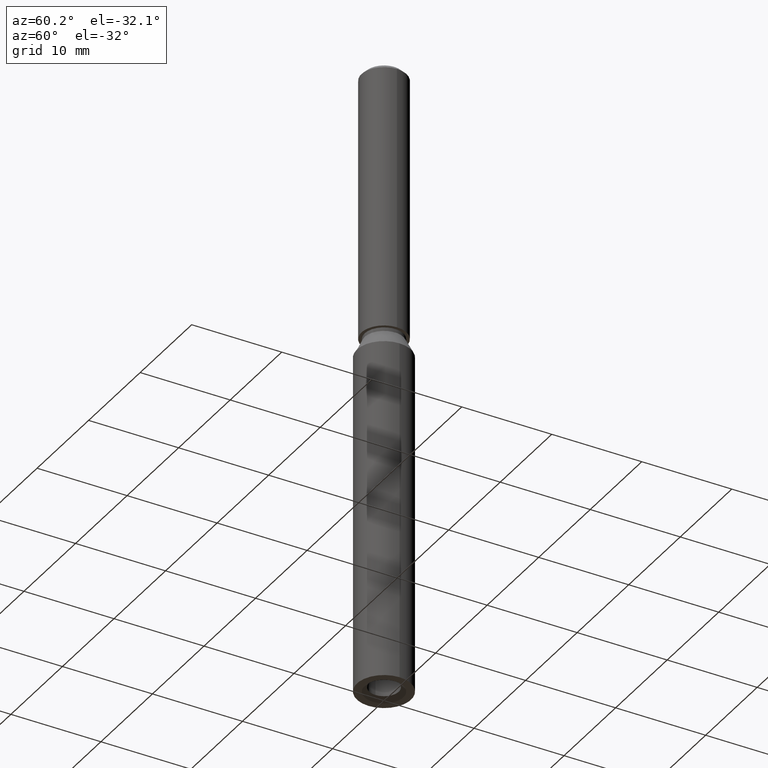
[diagram: clean part render]
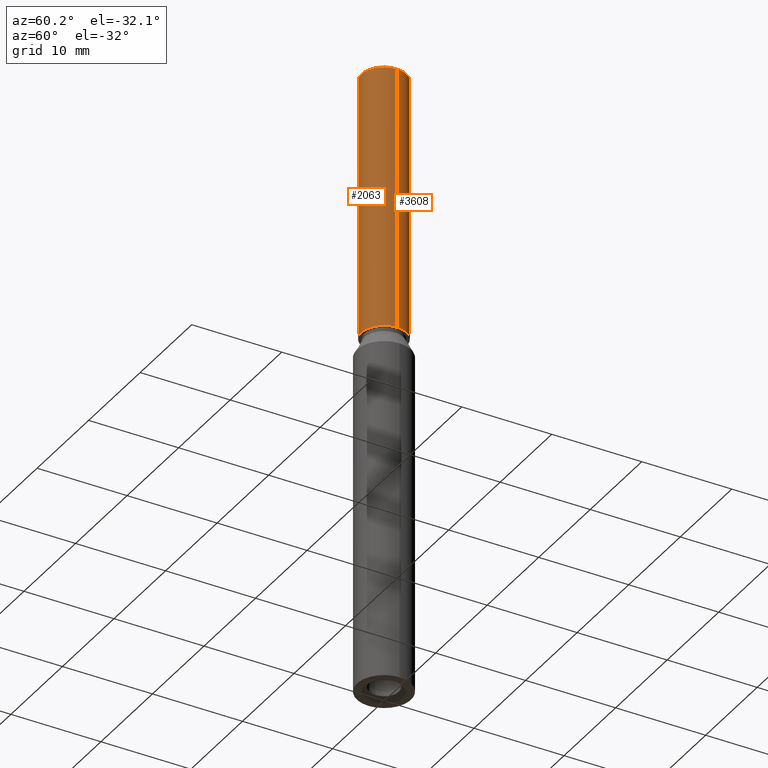
[diagram: same view with one multi-face feature highlighted, each face labeled with its STEP entity id]
A machine part, auxiliary view. The highlighted faces form ONE feature: a constant-radius fillet chain: 2 tangent blend faces with common blend radius 2.5 mm. The faces share edges in the B-rep.
Their STEP definitions:
[1] entity #3608 (Cylinder):
#199 = EDGE_LOOP ( 'NONE', ( #12756, #2316, #2643, #9318 ) ) ;
#763 = DIRECTION ( 'NONE',  ( 0.0000000000000000000, 1.000000000000000000, 0.0000000000000000000 ) ) ;
#1044 = VERTEX_POINT ( 'NONE', #2438 ) ;
#1679 = CIRCLE ( 'NONE', #2506, 2.500000000000000000 ) ;
#1763 = DIRECTION ( 'NONE',  ( -0.0000000000000000000, 1.967742040464204400E-018, -1.000000000000000000 ) ) ;
#2316 = ORIENTED_EDGE ( 'NONE', *, *, #4441, .T. ) ;
#2438 = CARTESIAN_POINT ( 'NONE',  ( -2.500000000000000000, 0.0000000000000000000, 40.10000000000000100 ) ) ;
#2506 = AXIS2_PLACEMENT_3D ( 'NONE', #13674, #1763, #763 ) ;
#2643 = ORIENTED_EDGE ( 'NONE', *, *, #3702, .F. ) ;
#2774 = AXIS2_PLACEMENT_3D ( 'NONE', #9243, #7018, #8112 ) ;
#2819 = AXIS2_PLACEMENT_3D ( 'NONE', #4893, #5967, #13592 ) ;
#3608 = ADVANCED_FACE ( 'NONE', ( #5890 ), #5059, .T. ) ;
#3654 = CARTESIAN_POINT ( 'NONE',  ( -2.500000000000000000, 0.0000000000000000000, 70.00000000000000000 ) ) ;
#3697 = DIRECTION ( 'NONE',  ( -0.0000000000000000000, -0.0000000000000000000, -1.000000000000000000 ) ) ;
#3702 = EDGE_CURVE ( 'NONE', #1044, #6711, #1679, .T. ) ;
#3825 = CARTESIAN_POINT ( 'NONE',  ( 2.500000000000000000, 3.061616997868383100E-016, 40.10000000000000100 ) ) ;
#4218 = LINE ( 'NONE', #3654, #5374 ) ;
#4441 = EDGE_CURVE ( 'NONE', #10838, #6711, #9627, .T. ) ;
#4893 = CARTESIAN_POINT ( 'NONE',  ( 0.0000000000000000000, 0.0000000000000000000, 69.50000000000001400 ) ) ;
#4940 = VERTEX_POINT ( 'NONE', #12762 ) ;
#5059 = CYLINDRICAL_SURFACE ( 'NONE', #2774, 2.500000000000000000 ) ;
#5374 = VECTOR ( 'NONE', #3697, 1000.000000000000000 ) ;
#5890 = FACE_OUTER_BOUND ( 'NONE', #199, .T. ) ;
#5967 = DIRECTION ( 'NONE',  ( 0.0000000000000000000, 0.0000000000000000000, -1.000000000000000000 ) ) ;
#6398 = VECTOR ( 'NONE', #8318, 1000.000000000000000 ) ;
#6711 = VERTEX_POINT ( 'NONE', #3825 ) ;
#7002 = CIRCLE ( 'NONE', #2819, 2.500000000000000000 ) ;
#7018 = DIRECTION ( 'NONE',  ( -0.0000000000000000000, -0.0000000000000000000, -1.000000000000000000 ) ) ;
#7600 = EDGE_CURVE ( 'NONE', #4940, #1044, #4218, .T. ) ;
#7754 = CARTESIAN_POINT ( 'NONE',  ( 2.500000000000000000, 3.061616997868383100E-016, 69.50000000000001400 ) ) ;
#8112 = DIRECTION ( 'NONE',  ( -1.000000000000000000, 0.0000000000000000000, 0.0000000000000000000 ) ) ;
#8318 = DIRECTION ( 'NONE',  ( -0.0000000000000000000, -0.0000000000000000000, -1.000000000000000000 ) ) ;
#9243 = CARTESIAN_POINT ( 'NONE',  ( 0.0000000000000000000, 0.0000000000000000000, 70.00000000000000000 ) ) ;
#9318 = ORIENTED_EDGE ( 'NONE', *, *, #7600, .F. ) ;
#9627 = LINE ( 'NONE', #12794, #6398 ) ;
#10838 = VERTEX_POINT ( 'NONE', #7754 ) ;
#12756 = ORIENTED_EDGE ( 'NONE', *, *, #12760, .T. ) ;
#12760 = EDGE_CURVE ( 'NONE', #4940, #10838, #7002, .T. ) ;
#12762 = CARTESIAN_POINT ( 'NONE',  ( -2.500000000000000000, 0.0000000000000000000, 69.50000000000001400 ) ) ;
#12794 = CARTESIAN_POINT ( 'NONE',  ( 2.500000000000000000, 3.061616997868383100E-016, 70.00000000000000000 ) ) ;
#13592 = DIRECTION ( 'NONE',  ( 1.000000000000000000, 0.0000000000000000000, 0.0000000000000000000 ) ) ;
#13674 = CARTESIAN_POINT ( 'NONE',  ( 0.0000000000000000000, 0.0000000000000000000, 40.10000000000000100 ) ) ;
[2] entity #2063 (Cylinder):
#238 = ORIENTED_EDGE ( 'NONE', *, *, #4441, .F. ) ;
#258 = CARTESIAN_POINT ( 'NONE',  ( 0.0000000000000000000, 0.0000000000000000000, 69.50000000000001400 ) ) ;
#893 = DIRECTION ( 'NONE',  ( -1.000000000000000000, 0.0000000000000000000, 0.0000000000000000000 ) ) ;
#1044 = VERTEX_POINT ( 'NONE', #2438 ) ;
#2053 = CARTESIAN_POINT ( 'NONE',  ( 0.0000000000000000000, 0.0000000000000000000, 40.10000000000000100 ) ) ;
#2063 = ADVANCED_FACE ( 'NONE', ( #5756 ), #7637, .T. ) ;
#2438 = CARTESIAN_POINT ( 'NONE',  ( -2.500000000000000000, 0.0000000000000000000, 40.10000000000000100 ) ) ;
#2796 = CARTESIAN_POINT ( 'NONE',  ( 0.0000000000000000000, 0.0000000000000000000, 70.00000000000000000 ) ) ;
#2897 = ORIENTED_EDGE ( 'NONE', *, *, #7600, .T. ) ;
#3366 = CIRCLE ( 'NONE', #10875, 2.500000000000000000 ) ;
#3368 = AXIS2_PLACEMENT_3D ( 'NONE', #258, #10882, #12028 ) ;
#3654 = CARTESIAN_POINT ( 'NONE',  ( -2.500000000000000000, 0.0000000000000000000, 70.00000000000000000 ) ) ;
#3697 = DIRECTION ( 'NONE',  ( -0.0000000000000000000, -0.0000000000000000000, -1.000000000000000000 ) ) ;
#3825 = CARTESIAN_POINT ( 'NONE',  ( 2.500000000000000000, 3.061616997868383100E-016, 40.10000000000000100 ) ) ;
#4152 = ORIENTED_EDGE ( 'NONE', *, *, #6842, .F. ) ;
#4218 = LINE ( 'NONE', #3654, #5374 ) ;
#4441 = EDGE_CURVE ( 'NONE', #10838, #6711, #9627, .T. ) ;
#4940 = VERTEX_POINT ( 'NONE', #12762 ) ;
#5206 = EDGE_LOOP ( 'NONE', ( #238, #12721, #2897, #4152 ) ) ;
#5222 = DIRECTION ( 'NONE',  ( 0.0000000000000000000, 1.000000000000000000, 0.0000000000000000000 ) ) ;
#5374 = VECTOR ( 'NONE', #3697, 1000.000000000000000 ) ;
#5756 = FACE_OUTER_BOUND ( 'NONE', #5206, .T. ) ;
#6398 = VECTOR ( 'NONE', #8318, 1000.000000000000000 ) ;
#6711 = VERTEX_POINT ( 'NONE', #3825 ) ;
#6842 = EDGE_CURVE ( 'NONE', #6711, #1044, #3366, .T. ) ;
#7153 = DIRECTION ( 'NONE',  ( -0.0000000000000000000, -0.0000000000000000000, -1.000000000000000000 ) ) ;
#7600 = EDGE_CURVE ( 'NONE', #4940, #1044, #4218, .T. ) ;
#7637 = CYLINDRICAL_SURFACE ( 'NONE', #8125, 2.500000000000000000 ) ;
#7754 = CARTESIAN_POINT ( 'NONE',  ( 2.500000000000000000, 3.061616997868383100E-016, 69.50000000000001400 ) ) ;
#8125 = AXIS2_PLACEMENT_3D ( 'NONE', #2796, #7153, #893 ) ;
#8318 = DIRECTION ( 'NONE',  ( -0.0000000000000000000, -0.0000000000000000000, -1.000000000000000000 ) ) ;
#9625 = DIRECTION ( 'NONE',  ( -0.0000000000000000000, 1.967742040464204400E-018, -1.000000000000000000 ) ) ;
#9627 = LINE ( 'NONE', #12794, #6398 ) ;
#9975 = EDGE_CURVE ( 'NONE', #10838, #4940, #10601, .T. ) ;
#10601 = CIRCLE ( 'NONE', #3368, 2.500000000000000000 ) ;
#10838 = VERTEX_POINT ( 'NONE', #7754 ) ;
#10875 = AXIS2_PLACEMENT_3D ( 'NONE', #2053, #9625, #5222 ) ;
#10882 = DIRECTION ( 'NONE',  ( 0.0000000000000000000, 0.0000000000000000000, -1.000000000000000000 ) ) ;
#12028 = DIRECTION ( 'NONE',  ( 1.000000000000000000, 0.0000000000000000000, 0.0000000000000000000 ) ) ;
#12721 = ORIENTED_EDGE ( 'NONE', *, *, #9975, .T. ) ;
#12762 = CARTESIAN_POINT ( 'NONE',  ( -2.500000000000000000, 0.0000000000000000000, 69.50000000000001400 ) ) ;
#12794 = CARTESIAN_POINT ( 'NONE',  ( 2.500000000000000000, 3.061616997868383100E-016, 70.00000000000000000 ) ) ;